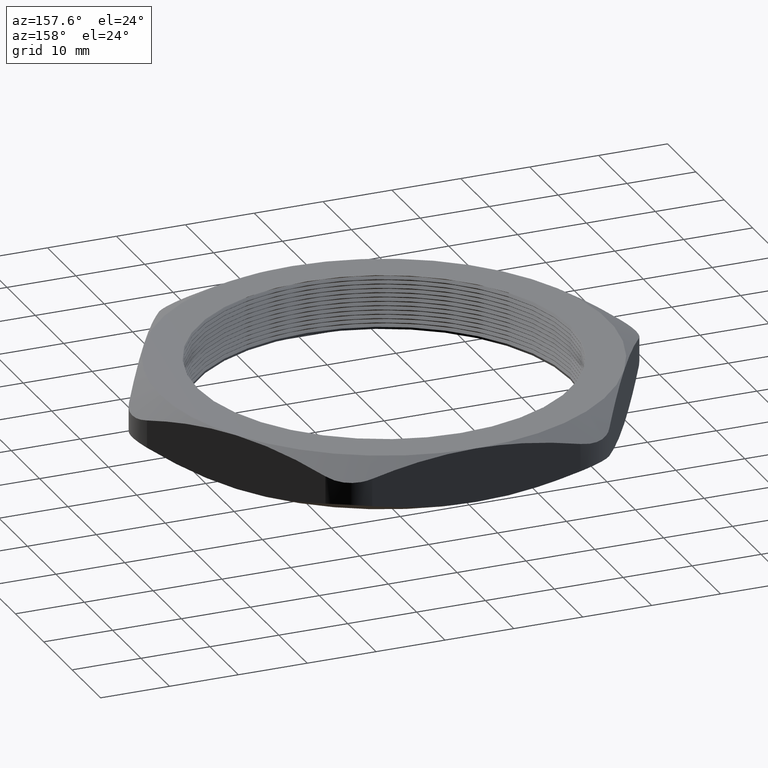
[diagram: clean part render]
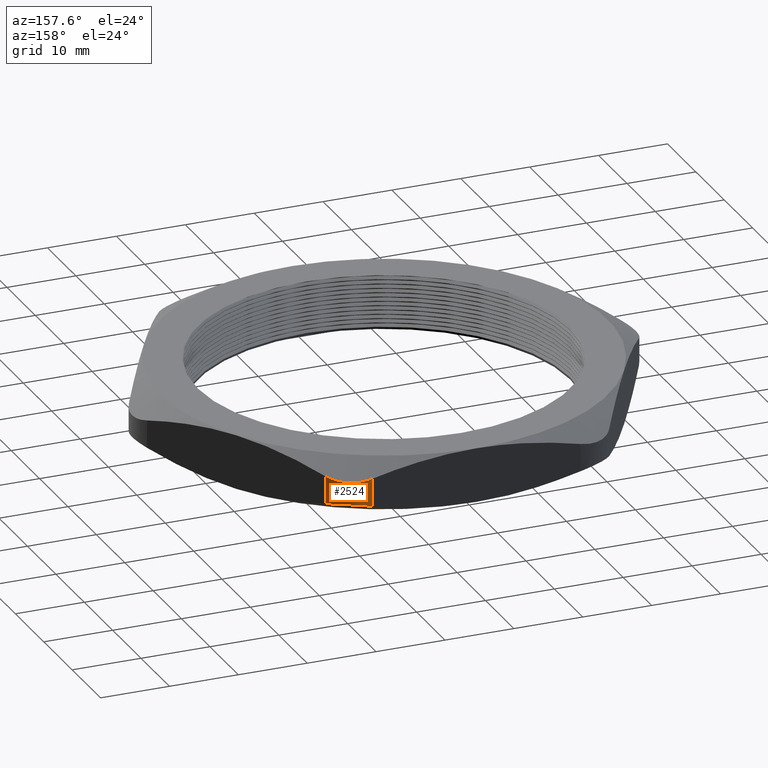
[diagram: same view with one face highlighted and labeled with its STEP entity id]
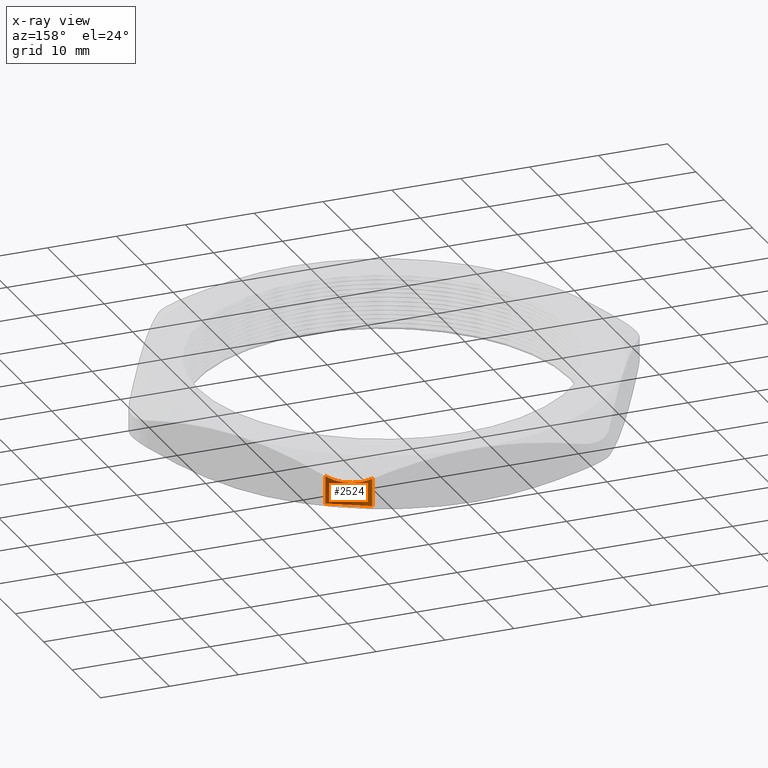
[diagram: x-ray of the same camera — body ghosted, the highlighted face saturated]
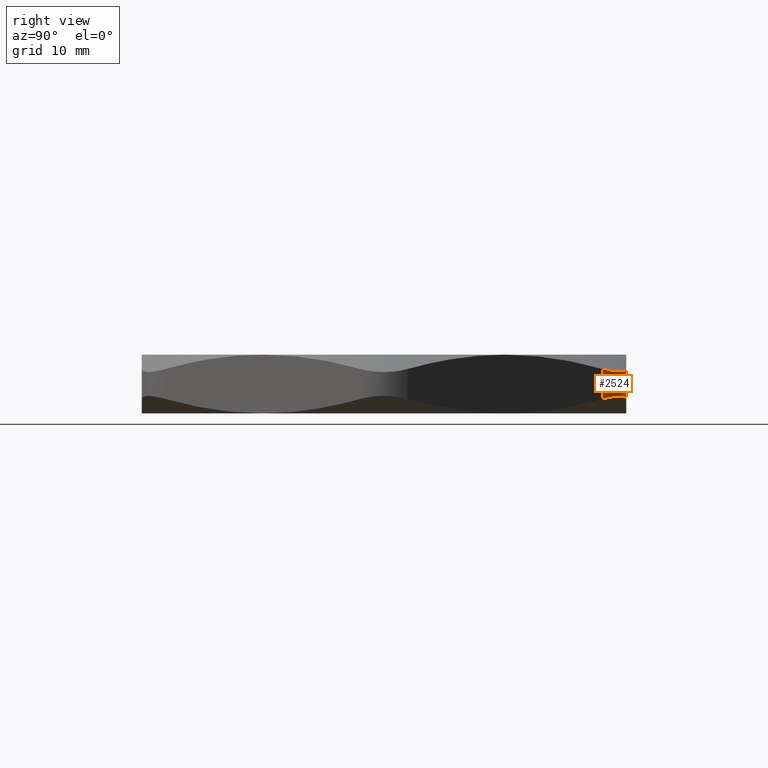
[diagram: same view with one face highlighted and labeled with its STEP entity id]
A machine part, auxiliary view. The second image highlights one B-rep face of the part: STEP entity #2524.
The next image is the same camera in x-ray: the body ghosted, the highlighted face saturated — about 0% of this face is hidden behind the body in this view.
A second angle (right view) of the same face is appended — the face is thin or edge-on in the first view.
In plain terms, the highlighted cylindrical surface (partial cylindrical patch) has radius 6.35 mm, axis along (0, 0, -1).
Its self-contained STEP definition (entity closure, byte-faithful):
#408 = CARTESIAN_POINT ( 'NONE',  ( 0.8111771282114247400, 1.155000000000000000, 0.07586042469470410900 ) ) ;
#620 = CARTESIAN_POINT ( 'NONE',  ( 0.5946707772653150300, 1.280000000000000000, 0.07586042469470401200 ) ) ;
#621 = DIRECTION ( 'NONE',  ( 0.0000000000000000000, 0.0000000000000000000, -1.000000000000000000 ) ) ;
#622 = VECTOR ( 'NONE', #621, 39.37007874015748100 ) ;
#623 = CARTESIAN_POINT ( 'NONE',  ( 0.5946707772653149200, 1.280000000000000000, 0.3100000000000000000 ) ) ;
#629 = LINE ( 'NONE', #623, #622 ) ;
#634 = CARTESIAN_POINT ( 'NONE',  ( 0.5946707772652473100, 1.280000000000000000, 0.2341395753053123800 ) ) ;
#641 = CARTESIAN_POINT ( 'NONE',  ( 0.8111771282114247400, 1.154999999999999800, 0.2341395753052957800 ) ) ;
#642 = DIRECTION ( 'NONE',  ( 0.0000000000000000000, 0.0000000000000000000, 1.000000000000000000 ) ) ;
#643 = VECTOR ( 'NONE', #642, 39.37007874015748100 ) ;
#644 = CARTESIAN_POINT ( 'NONE',  ( 0.8111771282114247400, 1.154999999999999800, 0.3100000000000000000 ) ) ;
#645 = LINE ( 'NONE', #644, #643 ) ;
#704 = CARTESIAN_POINT ( 'NONE',  ( 0.5946707772652473100, 1.280000000000000000, 0.2341395753053123800 ) ) ;
#705 = CARTESIAN_POINT ( 'NONE',  ( 0.6162603030697565400, 1.280000000000004500, 0.2288877439367423500 ) ) ;
#706 = CARTESIAN_POINT ( 'NONE',  ( 0.6380932363900537800, 1.277159335061446500, 0.2248223344599083500 ) ) ;
#707 = CARTESIAN_POINT ( 'NONE',  ( 0.6696218917417965400, 1.268748072567816600, 0.2207567025247123000 ) ) ;
#708 = CARTESIAN_POINT ( 'NONE',  ( 0.6799767698733151200, 1.265254203478371100, 0.2197282573600066700 ) ) ;
#709 = CARTESIAN_POINT ( 'NONE',  ( 0.7003631279385761400, 1.256827643020509000, 0.2183451522193614000 ) ) ;
#710 = CARTESIAN_POINT ( 'NONE',  ( 0.7103484313641060800, 1.251898737729833600, 0.2179999262217657600 ) ) ;
#711 = CARTESIAN_POINT ( 'NONE',  ( 0.7293424250066619100, 1.240912106713966100, 0.2180083726225882400 ) ) ;
#712 = CARTESIAN_POINT ( 'NONE',  ( 0.7384344114441814300, 1.234822322615568100, 0.2183554263421457800 ) ) ;
#713 = CARTESIAN_POINT ( 'NONE',  ( 0.7558103521459425000, 1.221452876085060000, 0.2197360370308119600 ) ) ;
#714 = CARTESIAN_POINT ( 'NONE',  ( 0.7641552604194976600, 1.214105362201574100, 0.2207831433094894200 ) ) ;
#715 = CARTESIAN_POINT ( 'NONE',  ( 0.7873150024386572600, 1.190833143950540600, 0.2248942894558707300 ) ) ;
#716 = CARTESIAN_POINT ( 'NONE',  ( 0.8003850585843868000, 1.173692412912850300, 0.2288890542598354100 ) ) ;
#717 = CARTESIAN_POINT ( 'NONE',  ( 0.8111771282114247400, 1.154999999999999800, 0.2341395753052957800 ) ) ;
#722 = B_SPLINE_CURVE_WITH_KNOTS ( 'NONE', 3,
 ( #717, #716, #715, #714, #713, #712, #711, #710, #709, #708, #707, #706, #705, #704 ),
 .UNSPECIFIED., .F., .F.,
 ( 4, 2, 2, 2, 2, 2, 4 ),
 ( 0.0000000000000000000, 0.001669840121051996900, 0.002504760181577999100, 0.003339680242104001200, 0.004174600302630003200, 0.005009520363156006100, 0.006679360484208020500 ),
 .UNSPECIFIED. ) ;
#942 = DIRECTION ( 'NONE',  ( -1.000000000000000000, 0.0000000000000000000, 0.0000000000000000000 ) ) ;
#943 = DIRECTION ( 'NONE',  ( 0.0000000000000000000, 0.0000000000000000000, -1.000000000000000000 ) ) ;
#944 = AXIS2_PLACEMENT_3D ( 'NONE', #951, #943, #942 ) ;
#945 = CYLINDRICAL_SURFACE ( 'NONE', #944, 0.2500000000000000000 ) ;
#946 = FACE_OUTER_BOUND ( 'NONE', #2525, .T. ) ;
#951 = CARTESIAN_POINT ( 'NONE',  ( 0.5946707772653149200, 1.030000000000000000, 0.3100000000000000000 ) ) ;
#1449 = CARTESIAN_POINT ( 'NONE',  ( 0.7099901957746030900, 1.252085121470513800, 0.09199162737741095600 ) ) ;
#1450 = CARTESIAN_POINT ( 'NONE',  ( 0.7001702948230696900, 1.256914120647067100, 0.09164457365785291800 ) ) ;
#1451 = CARTESIAN_POINT ( 'NONE',  ( 0.6799040441422357100, 1.265277403444186000, 0.09026396296918595700 ) ) ;
#1452 = CARTESIAN_POINT ( 'NONE',  ( 0.6693684563277029200, 1.268830549059591300, 0.08921685669050823100 ) ) ;
#1453 = CARTESIAN_POINT ( 'NONE',  ( 0.6376342531103201800, 1.277251364867755900, 0.08510571054412710600 ) ) ;
#1454 = CARTESIAN_POINT ( 'NONE',  ( 0.6162549165193846900, 1.279999999999999400, 0.08111094574016318400 ) ) ;
#1455 = CARTESIAN_POINT ( 'NONE',  ( 0.5946707772653150300, 1.280000000000000000, 0.07586042469470401200 ) ) ;
#1460 = B_SPLINE_CURVE_WITH_KNOTS ( 'NONE', 3,
 ( #1455, #1454, #1453, #1452, #1451, #1450, #1449, #1502, #1501, #1500, #1499, #1498, #1497, #1496 ),
 .UNSPECIFIED., .F., .F.,
 ( 4, 2, 2, 2, 2, 2, 4 ),
 ( 1.748223473168675600E-018, 0.001669840121051564700, 0.002504760181577351200, 0.003339680242103137300, 0.004174600302628923300, 0.005009520363154710200, 0.006679360484206268500 ),
 .UNSPECIFIED. ) ;
#1496 = CARTESIAN_POINT ( 'NONE',  ( 0.8111771282114247400, 1.155000000000000000, 0.07586042469470410900 ) ) ;
#1497 = CARTESIAN_POINT ( 'NONE',  ( 0.8003823653091827200, 1.173697077802344800, 0.08111225606326640000 ) ) ;
#1498 = CARTESIAN_POINT ( 'NONE',  ( 0.7870058106485912100, 1.191184620227581500, 0.08517766554010086600 ) ) ;
#1499 = CARTESIAN_POINT ( 'NONE',  ( 0.7639571159753383300, 1.214283605462529700, 0.08924329747529270700 ) ) ;
#1500 = CARTESIAN_POINT ( 'NONE',  ( 0.7557538975206223900, 1.221504258432790400, 0.09027174263999725200 ) ) ;
#1501 = CARTESIAN_POINT ( 'NONE',  ( 0.7382631030649599000, 1.234946082179014800, 0.09165484778064036900 ) ) ;
#1502 = CARTESIAN_POINT ( 'NONE',  ( 0.7290018941576241800, 1.241129155964679500, 0.09200007377823486700 ) ) ;
#2021 = VERTEX_POINT ( 'NONE', #408 ) ;
#2106 = EDGE_CURVE ( 'NONE', #2131, #2107, #629, .T. ) ;
#2107 = VERTEX_POINT ( 'NONE', #620 ) ;
#2123 = EDGE_CURVE ( 'NONE', #2021, #2124, #645, .T. ) ;
#2124 = VERTEX_POINT ( 'NONE', #641 ) ;
#2131 = VERTEX_POINT ( 'NONE', #634 ) ;
#2144 = EDGE_CURVE ( 'NONE', #2124, #2131, #722, .T. ) ;
#2524 = ADVANCED_FACE ( 'NONE', ( #946 ), #945, .T. ) ;
#2525 = EDGE_LOOP ( 'NONE', ( #2526, #2527, #2528, #2941 ) ) ;
#2526 = ORIENTED_EDGE ( 'NONE', *, *, #2144, .F. ) ;
#2527 = ORIENTED_EDGE ( 'NONE', *, *, #2123, .F. ) ;
#2528 = ORIENTED_EDGE ( 'NONE', *, *, #2872, .F. ) ;
#2872 = EDGE_CURVE ( 'NONE', #2107, #2021, #1460, .T. ) ;
#2941 = ORIENTED_EDGE ( 'NONE', *, *, #2106, .F. ) ;